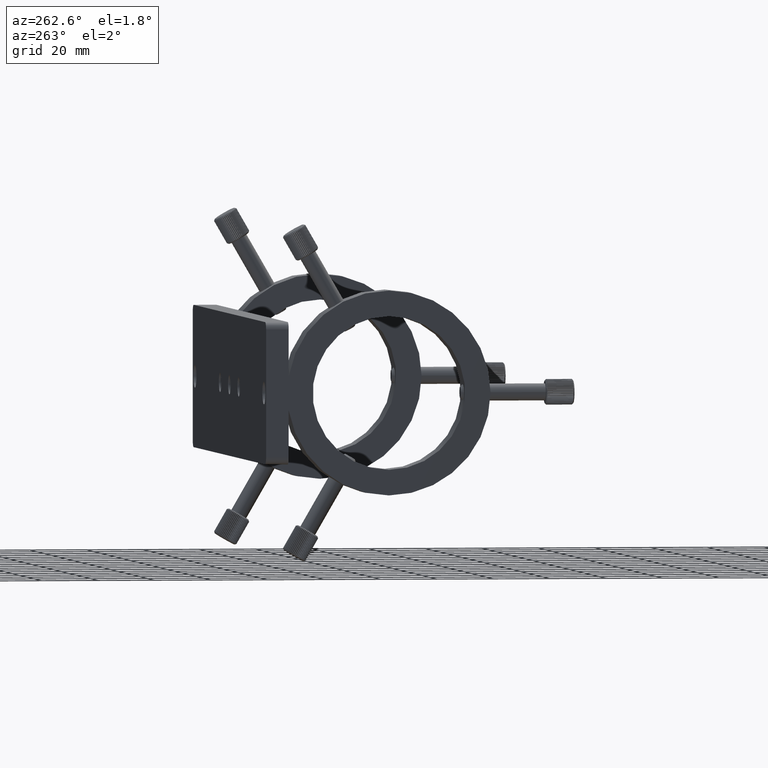
[diagram: clean part render]
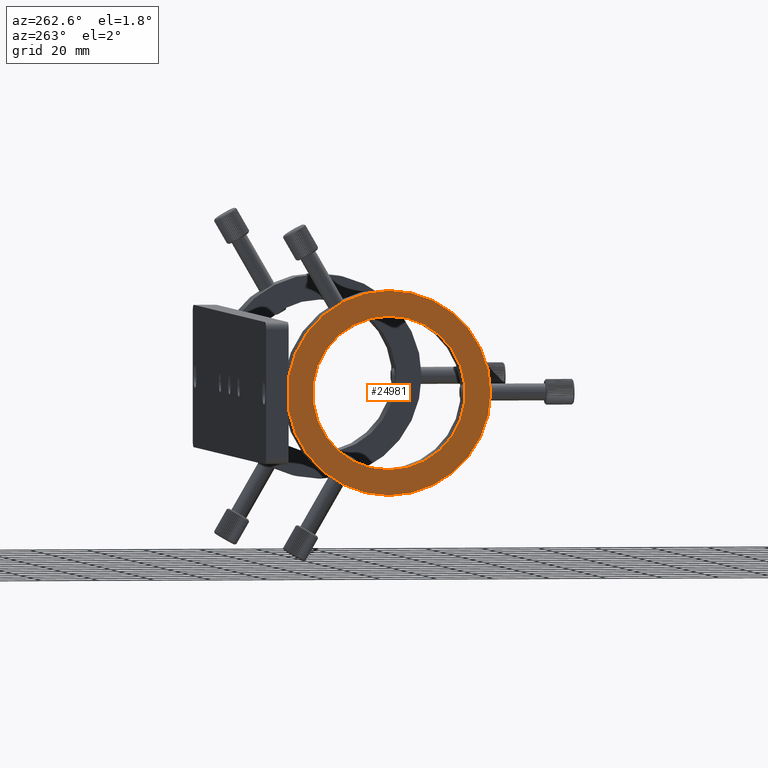
[diagram: same view with one face highlighted and labeled with its STEP entity id]
A machine part, auxiliary view. The second image highlights one B-rep face of the part: STEP entity #24981.
In plain terms, the highlighted planar face has unit normal (-1, -0, -0).
Its self-contained STEP definition (entity closure, byte-faithful):
#266 = CIRCLE ( 'NONE', #27428, 36.00000000000002800 ) ;
#1021 = EDGE_CURVE ( 'NONE', #10876, #4872, #10687, .T. ) ;
#1426 = AXIS2_PLACEMENT_3D ( 'NONE', #3760, #29331, #6339 ) ;
#1777 = VERTEX_POINT ( 'NONE', #22655 ) ;
#1873 = ORIENTED_EDGE ( 'NONE', *, *, #27530, .T. ) ;
#2279 = LINE ( 'NONE', #21216, #28546 ) ;
#3760 = CARTESIAN_POINT ( 'NONE',  ( -103.6330608537693500, -52.91295791704508400, 2.130934317889909500E-014 ) ) ;
#3800 = DIRECTION ( 'NONE',  ( 0.0000000000000000000, -5.139921410301645900E-016, -1.000000000000000000 ) ) ;
#4073 = AXIS2_PLACEMENT_3D ( 'NONE', #14560, #32022, #4880 ) ;
#4872 = VERTEX_POINT ( 'NONE', #27795 ) ;
#4880 = DIRECTION ( 'NONE',  ( 0.0000000000000000000, -5.139921410301645900E-016, -1.000000000000000000 ) ) ;
#5596 = DIRECTION ( 'NONE',  ( -1.000000000000000000, -3.227553289772365600E-016, -6.245004513516485800E-017 ) ) ;
#5971 = ORIENTED_EDGE ( 'NONE', *, *, #25855, .F. ) ;
#6339 = DIRECTION ( 'NONE',  ( 6.245004513516484600E-017, -5.457414612978047800E-016, -1.000000000000000000 ) ) ;
#8143 = CARTESIAN_POINT ( 'NONE',  ( -103.6330608537693500, -52.91295791704508400, 2.130934317889909500E-014 ) ) ;
#8649 = FACE_OUTER_BOUND ( 'NONE', #32241, .T. ) ;
#8999 = PLANE ( 'NONE',  #1426 ) ;
#9394 = CARTESIAN_POINT ( 'NONE',  ( -103.6330608537693500, -52.91295791704508400, 2.130934317889909500E-014 ) ) ;
#9839 = EDGE_CURVE ( 'NONE', #1777, #10876, #2279, .T. ) ;
#10180 = DIRECTION ( 'NONE',  ( -1.000000000000000000, -3.227553289772365600E-016, -6.245004513516485800E-017 ) ) ;
#10293 = EDGE_CURVE ( 'NONE', #4872, #17695, #266, .T. ) ;
#10370 = EDGE_LOOP ( 'NONE', ( #24548, #5971 ) ) ;
#10374 = DIRECTION ( 'NONE',  ( 0.0000000000000000000, -5.782411586589352700E-016, -1.000000000000000000 ) ) ;
#10687 = CIRCLE ( 'NONE', #29133, 36.00000000000002800 ) ;
#10876 = VERTEX_POINT ( 'NONE', #31022 ) ;
#11831 = CIRCLE ( 'NONE', #20825, 27.00000000000002500 ) ;
#11966 = DIRECTION ( 'NONE',  ( -1.000000000000000000, -3.227553289772365600E-016, -6.245004513516485800E-017 ) ) ;
#12741 = DIRECTION ( 'NONE',  ( 0.0000000000000000000, -5.782411586589352700E-016, -1.000000000000000000 ) ) ;
#13665 = EDGE_CURVE ( 'NONE', #29135, #21324, #28381, .T. ) ;
#14560 = CARTESIAN_POINT ( 'NONE',  ( -103.6330608537693500, -52.91295791704508400, 2.130934317889909500E-014 ) ) ;
#15183 = CARTESIAN_POINT ( 'NONE',  ( -103.6330608537693500, -52.91295791704508400, 2.130934317889909500E-014 ) ) ;
#15899 = CIRCLE ( 'NONE', #28994, 36.00000000000002800 ) ;
#16468 = ORIENTED_EDGE ( 'NONE', *, *, #10293, .T. ) ;
#17046 = DIRECTION ( 'NONE',  ( 0.0000000000000000000, -5.782411586589352700E-016, -1.000000000000000000 ) ) ;
#17695 = VERTEX_POINT ( 'NONE', #17732 ) ;
#17732 = CARTESIAN_POINT ( 'NONE',  ( -103.6330608537693500, -52.91295791704506300, 36.00000000000002100 ) ) ;
#19028 = CARTESIAN_POINT ( 'NONE',  ( -103.6330608537693500, -52.91295791704508400, 2.130934317889909500E-014 ) ) ;
#19705 = CARTESIAN_POINT ( 'NONE',  ( -103.6330608537693500, -52.91295791704510500, -26.99999999999997900 ) ) ;
#19763 = FACE_BOUND ( 'NONE', #10370, .T. ) ;
#20825 = AXIS2_PLACEMENT_3D ( 'NONE', #19028, #26801, #3800 ) ;
#21216 = CARTESIAN_POINT ( 'NONE',  ( -103.6330608537693800, -17.41295791704509100, 5.979130371550706300 ) ) ;
#21324 = VERTEX_POINT ( 'NONE', #19705 ) ;
#21326 = CARTESIAN_POINT ( 'NONE',  ( -103.6330608537693500, -52.91295791704506300, 27.00000000000002100 ) ) ;
#22655 = CARTESIAN_POINT ( 'NONE',  ( -103.6330608537693800, -17.41295791704509100, 5.979130371550706300 ) ) ;
#24548 = ORIENTED_EDGE ( 'NONE', *, *, #13665, .F. ) ;
#24981 = ADVANCED_FACE ( 'NONE', ( #8649, #19763 ), #8999, .T. ) ;
#25855 = EDGE_CURVE ( 'NONE', #21324, #29135, #11831, .T. ) ;
#26801 = DIRECTION ( 'NONE',  ( -1.000000000000000000, -3.227553289772365600E-016, -6.245004513516485800E-017 ) ) ;
#27428 = AXIS2_PLACEMENT_3D ( 'NONE', #15183, #10180, #12741 ) ;
#27530 = EDGE_CURVE ( 'NONE', #17695, #1777, #15899, .T. ) ;
#27795 = CARTESIAN_POINT ( 'NONE',  ( -103.6330608537693500, -52.91295791704510500, -35.99999999999997900 ) ) ;
#28381 = CIRCLE ( 'NONE', #4073, 27.00000000000002500 ) ;
#28546 = VECTOR ( 'NONE', #28886, 1000.000000000000000 ) ;
#28886 = DIRECTION ( 'NONE',  ( 6.245004513516505500E-017, -5.457414612978047800E-016, -1.000000000000000000 ) ) ;
#28994 = AXIS2_PLACEMENT_3D ( 'NONE', #8143, #5596, #10374 ) ;
#29133 = AXIS2_PLACEMENT_3D ( 'NONE', #9394, #11966, #17046 ) ;
#29135 = VERTEX_POINT ( 'NONE', #21326 ) ;
#29331 = DIRECTION ( 'NONE',  ( -1.000000000000000000, -3.227553289772365600E-016, -6.245004513516467300E-017 ) ) ;
#31022 = CARTESIAN_POINT ( 'NONE',  ( -103.6330608537693400, -17.41295791704507700, -5.979130371550700900 ) ) ;
#31727 = ORIENTED_EDGE ( 'NONE', *, *, #9839, .T. ) ;
#32022 = DIRECTION ( 'NONE',  ( -1.000000000000000000, -3.227553289772365600E-016, -6.245004513516485800E-017 ) ) ;
#32241 = EDGE_LOOP ( 'NONE', ( #32927, #16468, #1873, #31727 ) ) ;
#32927 = ORIENTED_EDGE ( 'NONE', *, *, #1021, .T. ) ;